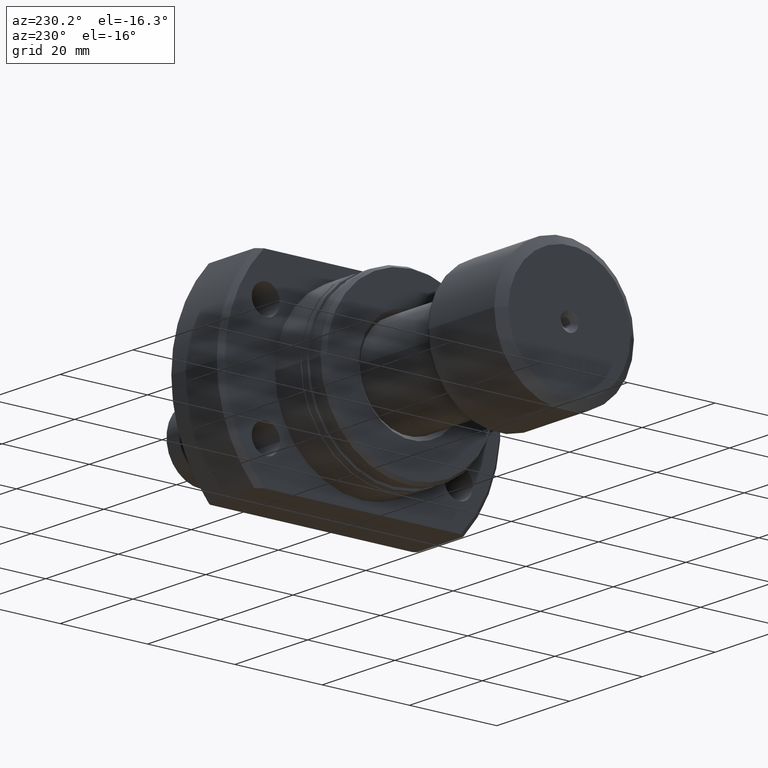
[diagram: clean part render]
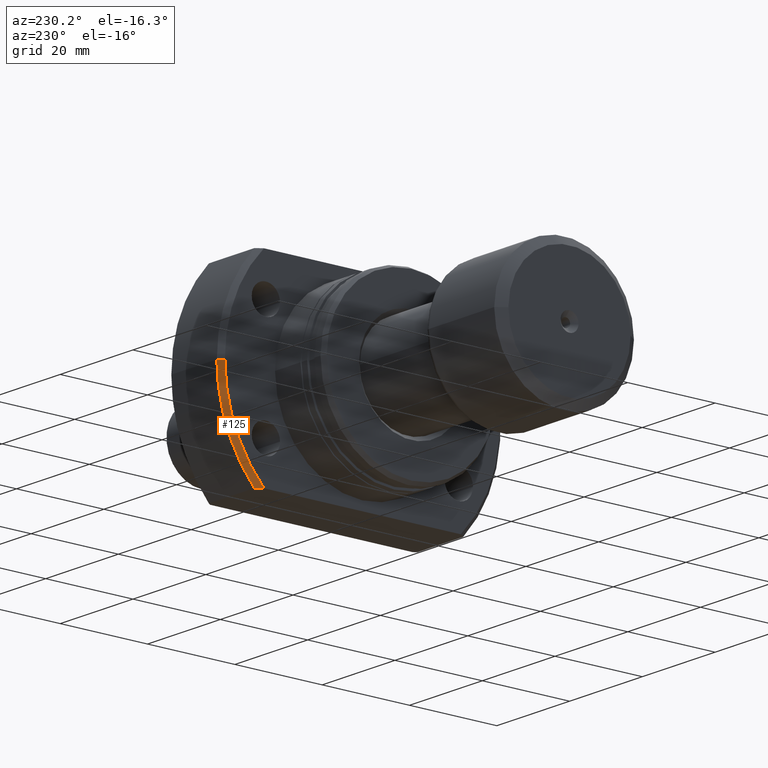
[diagram: same view with one face highlighted and labeled with its STEP entity id]
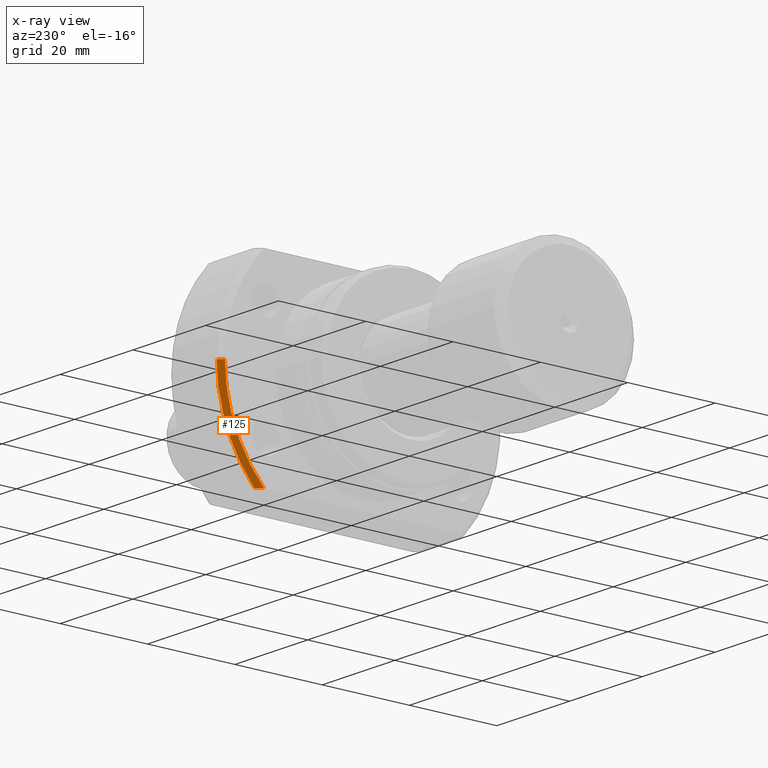
[diagram: x-ray of the same camera — body ghosted, the highlighted face saturated]
A machine part, auxiliary view. The second image highlights one B-rep face of the part: STEP entity #125.
The next image is the same camera in x-ray: the body ghosted, the highlighted face saturated — about 0% of this face is hidden behind the body in this view.
In plain terms, the highlighted conical surface has half-angle 45 deg.
Its self-contained STEP definition (entity closure, byte-faithful):
#49 = ORIENTED_EDGE ( 'NONE', *, *, #2658, .T. ) ;
#125 = ADVANCED_FACE ( 'NONE', ( #3577 ), #435, .T. ) ;
#353 = DIRECTION ( 'NONE',  ( 0.000000000000000000, 1.000000000000000000, 0.000000000000000000 ) ) ;
#435 = CONICAL_SURFACE ( 'NONE', #2578, 31.49999999999993250, 0.7853981633974466137 ) ;
#470 = DIRECTION ( 'NONE',  ( 0.000000000000000000, 1.000000000000000000, 0.000000000000000000 ) ) ;
#625 = AXIS2_PLACEMENT_3D ( 'NONE', #2265, #3609, #1057 ) ;
#722 = ORIENTED_EDGE ( 'NONE', *, *, #2749, .T. ) ;
#731 = B_SPLINE_CURVE_WITH_KNOTS ( 'NONE', 3,
 ( #2506, #2790, #3325, #1894 ),
 .UNSPECIFIED., .F., .F.,
 ( 4, 4 ),
 ( 0.03779752499755564821, 0.03950166028446427946 ),
 .UNSPECIFIED. ) ;
#830 = CARTESIAN_POINT ( 'NONE',  ( 13.50000000000000178, 31.49999999999993250, 0.000000000000000000 ) ) ;
#907 = DIRECTION ( 'NONE',  ( 1.000000000000000000, 1.335978326342566810E-17, -0.000000000000000000 ) ) ;
#998 = CARTESIAN_POINT ( 'NONE',  ( 13.50000000000000178, 1.803570740562465225E-16, 0.000000000000000000 ) ) ;
#1057 = DIRECTION ( 'NONE',  ( 0.000000000000000000, 1.000000000000000000, 0.000000000000000000 ) ) ;
#1097 = CIRCLE ( 'NONE', #625, 31.49999999999993250 ) ;
#1202 = VERTEX_POINT ( 'NONE', #2805 ) ;
#1229 = AXIS2_PLACEMENT_3D ( 'NONE', #3420, #907, #353 ) ;
#1234 = EDGE_CURVE ( 'NONE', #1202, #2132, #731, .T. ) ;
#1284 = VECTOR ( 'NONE', #1964, 1000.000000000000000 ) ;
#1298 = CARTESIAN_POINT ( 'NONE',  ( 14.49999999999999289, 32.49999999999991473, 0.000000000000000000 ) ) ;
#1415 = EDGE_CURVE ( 'NONE', #1202, #3194, #1760, .T. ) ;
#1760 = CIRCLE ( 'NONE', #1229, 32.49999999999991473 ) ;
#1814 = CARTESIAN_POINT ( 'NONE',  ( 13.50000000000000178, 31.49999999999993250, 0.000000000000000000 ) ) ;
#1894 = CARTESIAN_POINT ( 'NONE',  ( 13.50000000000000178, 22.54440063519089676, -22.00000000000000355 ) ) ;
#1964 = DIRECTION ( 'NONE',  ( 0.7071067811865487940, 0.7071067811865463515, 0.000000000000000000 ) ) ;
#2132 = VERTEX_POINT ( 'NONE', #3686 ) ;
#2220 = ORIENTED_EDGE ( 'NONE', *, *, #1234, .T. ) ;
#2265 = CARTESIAN_POINT ( 'NONE',  ( 13.50000000000000178, 1.803570740562465225E-16, 0.000000000000000000 ) ) ;
#2506 = CARTESIAN_POINT ( 'NONE',  ( 14.49999999999999289, 23.92174742781164198, -22.00000000000000000 ) ) ;
#2578 = AXIS2_PLACEMENT_3D ( 'NONE', #998, #2982, #470 ) ;
#2658 = EDGE_CURVE ( 'NONE', #2132, #3465, #1097, .T. ) ;
#2749 = EDGE_CURVE ( 'NONE', #3465, #3194, #3364, .T. ) ;
#2790 = CARTESIAN_POINT ( 'NONE',  ( 14.16368991444089964, 23.46483775540317751, -22.00000000000000355 ) ) ;
#2805 = CARTESIAN_POINT ( 'NONE',  ( 14.49999999999999289, 23.92174742781164198, -22.00000000000000000 ) ) ;
#2982 = DIRECTION ( 'NONE',  ( 1.000000000000000000, 1.335978326342566810E-17, -0.000000000000000000 ) ) ;
#3094 = EDGE_LOOP ( 'NONE', ( #49, #722, #3190, #2220 ) ) ;
#3190 = ORIENTED_EDGE ( 'NONE', *, *, #1415, .F. ) ;
#3194 = VERTEX_POINT ( 'NONE', #1298 ) ;
#3325 = CARTESIAN_POINT ( 'NONE',  ( 13.83023180395318619, 23.00581462409453692, -22.00000000000000355 ) ) ;
#3364 = LINE ( 'NONE', #830, #1284 ) ;
#3420 = CARTESIAN_POINT ( 'NONE',  ( 14.49999999999999289, 1.937168573196720858E-16, 0.000000000000000000 ) ) ;
#3465 = VERTEX_POINT ( 'NONE', #1814 ) ;
#3577 = FACE_OUTER_BOUND ( 'NONE', #3094, .T. ) ;
#3609 = DIRECTION ( 'NONE',  ( 1.000000000000000000, 1.335978326342566810E-17, -0.000000000000000000 ) ) ;
#3686 = CARTESIAN_POINT ( 'NONE',  ( 13.50000000000000178, 22.54440063519089676, -22.00000000000000355 ) ) ;